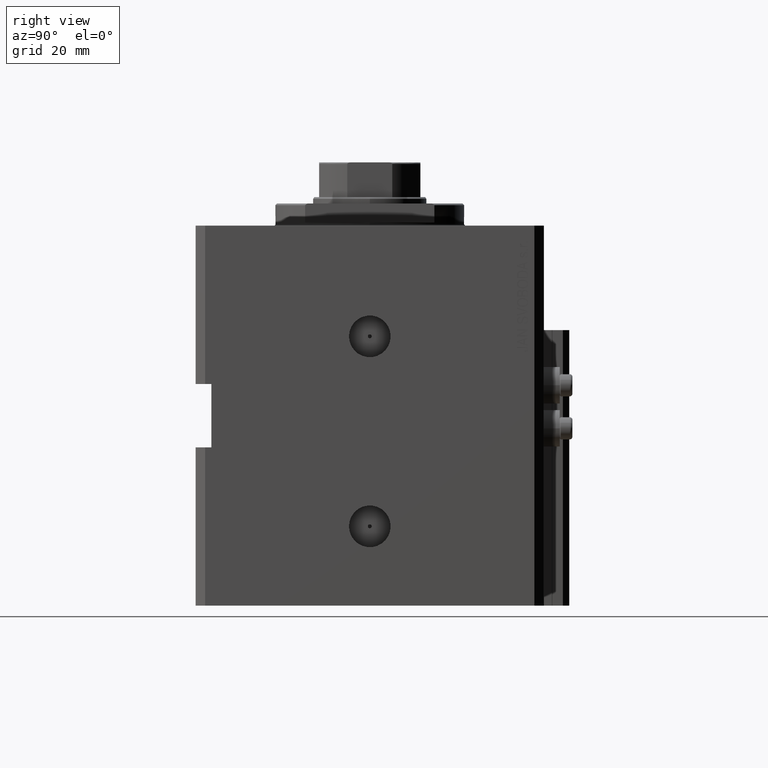
[diagram: clean part render]
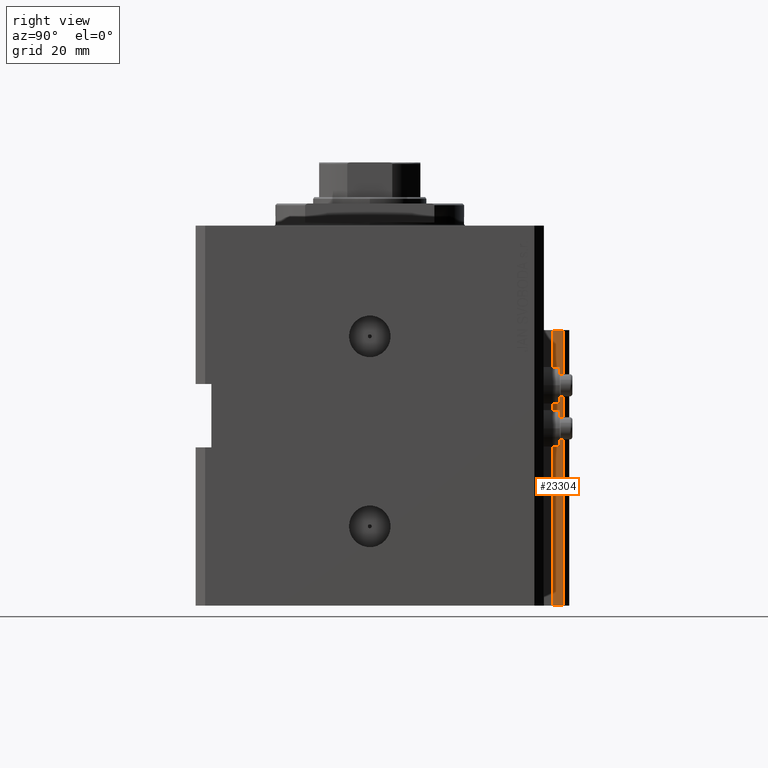
[diagram: same view with one face highlighted and labeled with its STEP entity id]
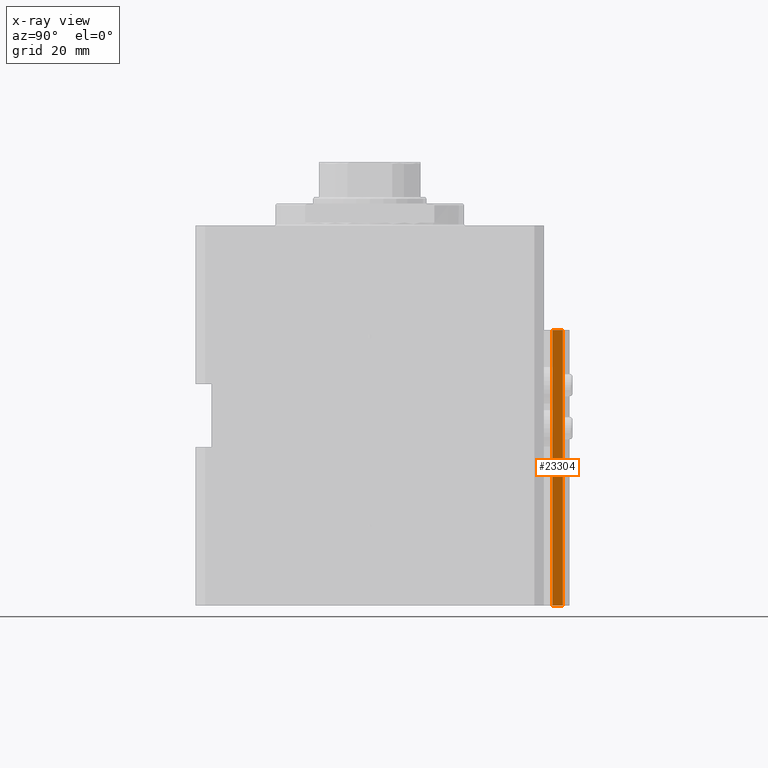
[diagram: x-ray of the same camera — body ghosted, the highlighted face saturated]
A machine part, right view. The second image highlights one B-rep face of the part: STEP entity #23304.
The next image is the same camera in x-ray: the body ghosted, the highlighted face saturated — about 0% of this face is hidden behind the body in this view.
In plain terms, the highlighted planar face has unit normal (1, 0, 0).
Its self-contained STEP definition (entity closure, byte-faithful):
#188 = LINE ( 'NONE', #7331, #10901 ) ;
#2369 = EDGE_LOOP ( 'NONE', ( #31837, #41695, #32805, #9339 ) ) ;
#4206 = VECTOR ( 'NONE', #10403, 1000.000000000000000 ) ;
#6917 = VECTOR ( 'NONE', #23579, 1000.000000000000000 ) ;
#6955 = CARTESIAN_POINT ( 'NONE',  ( 12.00000000000000178, 57.70000000000003126, -120.0000000000000000 ) ) ;
#7331 = CARTESIAN_POINT ( 'NONE',  ( 12.00000000000000000, 61.00000000000002842, -120.0000000000000000 ) ) ;
#9339 = ORIENTED_EDGE ( 'NONE', *, *, #15527, .T. ) ;
#10403 = DIRECTION ( 'NONE',  ( 0.000000000000000000, 0.000000000000000000, 1.000000000000000000 ) ) ;
#10671 = PLANE ( 'NONE',  #37945 ) ;
#10901 = VECTOR ( 'NONE', #45339, 1000.000000000000000 ) ;
#11984 = LINE ( 'NONE', #16419, #6917 ) ;
#12097 = DIRECTION ( 'NONE',  ( -5.256737805990328981E-16, 1.000000000000000000, 0.000000000000000000 ) ) ;
#14376 = FACE_OUTER_BOUND ( 'NONE', #2369, .T. ) ;
#15527 = EDGE_CURVE ( 'NONE', #47126, #30458, #188, .T. ) ;
#16050 = CARTESIAN_POINT ( 'NONE',  ( 12.00000000000000000, 61.00000000000002842, -120.0000000000000000 ) ) ;
#16419 = CARTESIAN_POINT ( 'NONE',  ( 12.00000000000000178, 57.70000000000003126, -120.0000000000000000 ) ) ;
#22717 = LINE ( 'NONE', #23448, #34964 ) ;
#23304 = ADVANCED_FACE ( 'NONE', ( #14376 ), #10671, .T. ) ;
#23448 = CARTESIAN_POINT ( 'NONE',  ( 12.00000000000000178, 57.70000000000003126, -33.00000000000000000 ) ) ;
#23579 = DIRECTION ( 'NONE',  ( -5.256737805990328981E-16, 1.000000000000000000, 0.000000000000000000 ) ) ;
#28745 = EDGE_CURVE ( 'NONE', #36208, #38887, #37028, .T. ) ;
#29886 = CARTESIAN_POINT ( 'NONE',  ( 11.99999999999999822, 57.70000000000003126, -120.0000000000000000 ) ) ;
#30458 = VERTEX_POINT ( 'NONE', #40581 ) ;
#31837 = ORIENTED_EDGE ( 'NONE', *, *, #34101, .F. ) ;
#32805 = ORIENTED_EDGE ( 'NONE', *, *, #44127, .T. ) ;
#34101 = EDGE_CURVE ( 'NONE', #38887, #30458, #22717, .T. ) ;
#34964 = VECTOR ( 'NONE', #12097, 1000.000000000000000 ) ;
#36208 = VERTEX_POINT ( 'NONE', #46343 ) ;
#36576 = DIRECTION ( 'NONE',  ( 1.000000000000000000, 5.256737805990328981E-16, -0.000000000000000000 ) ) ;
#37028 = LINE ( 'NONE', #29886, #4206 ) ;
#37945 = AXIS2_PLACEMENT_3D ( 'NONE', #6955, #36576, #40525 ) ;
#38887 = VERTEX_POINT ( 'NONE', #40308 ) ;
#40308 = CARTESIAN_POINT ( 'NONE',  ( 11.99999999999999822, 57.70000000000003126, -33.00000000000000000 ) ) ;
#40525 = DIRECTION ( 'NONE',  ( -5.256737805990328981E-16, 1.000000000000000000, 0.000000000000000000 ) ) ;
#40581 = CARTESIAN_POINT ( 'NONE',  ( 12.00000000000000000, 61.00000000000002842, -33.00000000000000000 ) ) ;
#41695 = ORIENTED_EDGE ( 'NONE', *, *, #28745, .F. ) ;
#44127 = EDGE_CURVE ( 'NONE', #36208, #47126, #11984, .T. ) ;
#45339 = DIRECTION ( 'NONE',  ( 0.000000000000000000, 0.000000000000000000, 1.000000000000000000 ) ) ;
#46343 = CARTESIAN_POINT ( 'NONE',  ( 11.99999999999999822, 57.70000000000003126, -120.0000000000000000 ) ) ;
#47126 = VERTEX_POINT ( 'NONE', #16050 ) ;